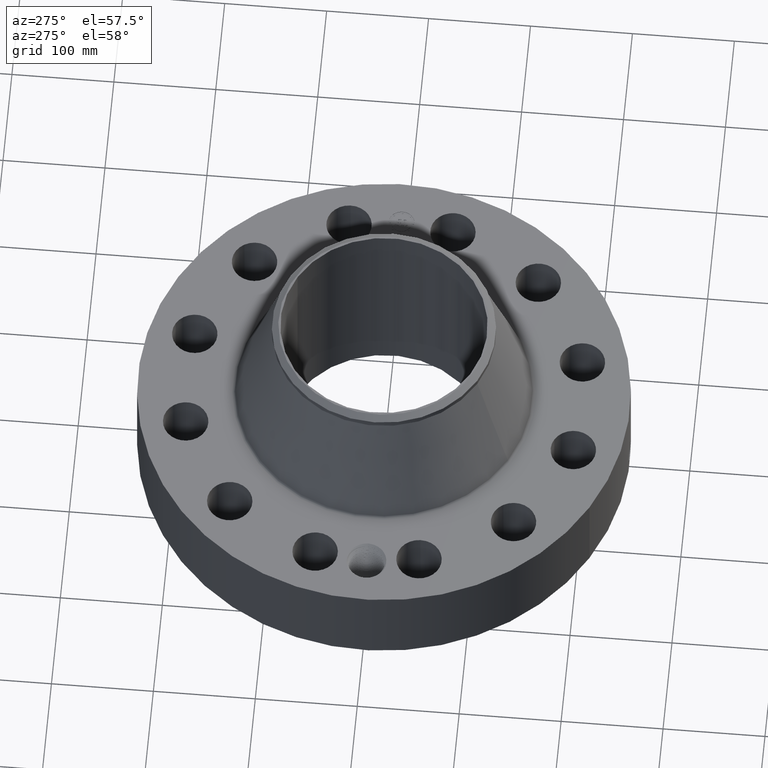
[diagram: clean part render]
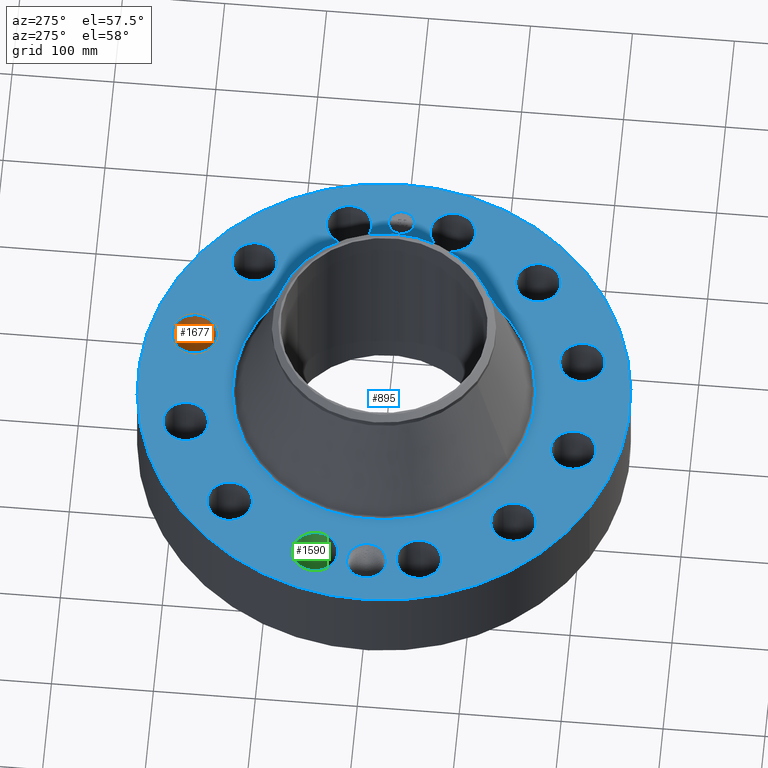
[diagram: same view with three faces highlighted in distinct colors, each labeled with its STEP entity id]
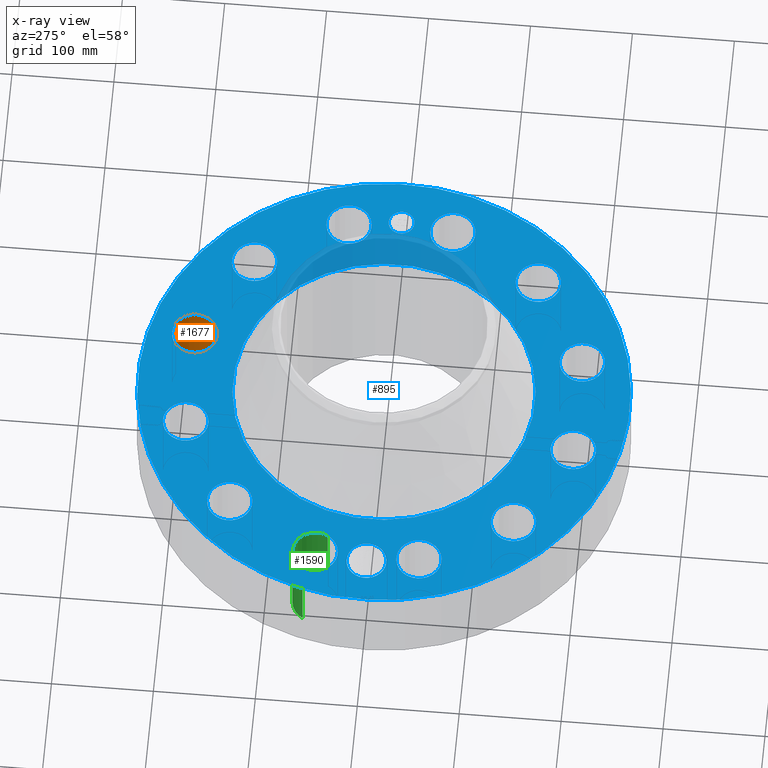
[diagram: x-ray of the same camera — body ghosted, the three highlighted faces saturated]
A machine part, auxiliary view with three faces highlighted in distinct colors.
The next image is the same camera in x-ray (body ghosted, the three faces saturated) — at least one of them is partly hidden behind the body in this view.
Their STEP definitions:

[orange] entity #1677 — the highlighted cylindrical surface (edge-blend (fillet) strip) has radius 22.225 mm, axis along (0, 0, -1).
#433=AXIS2_PLACEMENT_3D('Circle Axis2P3D',#431,#432,$) ;
#825=AXIS2_PLACEMENT_3D('Circle Axis2P3D',#823,#824,$) ;
#1652=AXIS2_PLACEMENT_3D('Cylinder Axis2P3D',#1649,#1650,#1651) ;
#426=CARTESIAN_POINT('Vertex',(1.58635025327,6.71804041211,0.250000000001)) ;
#428=CARTESIAN_POINT('Vertex',(2.42534494583,8.25380989543,0.250000000001)) ;
#431=CARTESIAN_POINT('Axis2P3D Location',(2.00584759955,7.48592515377,0.250000000001)) ;
#823=CARTESIAN_POINT('Axis2P3D Location',(2.00584759955,7.48592515377,3.87000000002)) ;
#827=CARTESIAN_POINT('Vertex',(2.42534494583,8.25380989543,3.87000000002)) ;
#829=CARTESIAN_POINT('Vertex',(1.58635025327,6.71804041211,3.87000000002)) ;
#1649=CARTESIAN_POINT('Axis2P3D Location',(2.00584759955,7.48592515377,3.86606299214)) ;
#1654=CARTESIAN_POINT('Line Origine',(1.58635025327,6.71804041211,2.06000000001)) ;
#1659=CARTESIAN_POINT('Line Origine',(2.42534494583,8.25380989543,2.06000000001)) ;
#432=DIRECTION('Axis2P3D Direction',(0.,0.,-0.0393700787402)) ;
#824=DIRECTION('Axis2P3D Direction',(0.,0.,-0.0393700787402)) ;
#1650=DIRECTION('Axis2P3D Direction',(0.,0.,-0.0393700787402)) ;
#1651=DIRECTION('Axis2P3D XDirection',(0.0188750212049,0.0345504945626,0.)) ;
#1655=DIRECTION('Vector Direction',(0.,0.,-0.0393700787402)) ;
#1660=DIRECTION('Vector Direction',(0.,0.,-0.0393700787402)) ;
#1656=VECTOR('Line Direction',#1655,0.0393700787402) ;
#1661=VECTOR('Line Direction',#1660,0.0393700787402) ;
#1672=ORIENTED_EDGE('',*,*,#1663,.F.) ;
#1673=ORIENTED_EDGE('',*,*,#435,.T.) ;
#1674=ORIENTED_EDGE('',*,*,#1658,.T.) ;
#1675=ORIENTED_EDGE('',*,*,#831,.F.) ;
#1677=ADVANCED_FACE('PartBody',(#1676),#1653,.F.) ;
#434=CIRCLE('generated circle',#433,0.875000000003) ;
#826=CIRCLE('generated circle',#825,0.875000000003) ;
#1653=CYLINDRICAL_SURFACE('generated cylinder',#1652,0.875000000003) ;
#435=EDGE_CURVE('',#429,#427,#434,.T.) ;
#831=EDGE_CURVE('',#828,#830,#826,.T.) ;
#1658=EDGE_CURVE('',#427,#830,#1657,.F.) ;
#1663=EDGE_CURVE('',#429,#828,#1662,.F.) ;
#1671=EDGE_LOOP('',(#1672,#1673,#1674,#1675)) ;
#1676=FACE_OUTER_BOUND('',#1671,.T.) ;
#1657=LINE('Line',#1654,#1656) ;
#1662=LINE('Line',#1659,#1661) ;
#427=VERTEX_POINT('',#426) ;
#429=VERTEX_POINT('',#428) ;
#828=VERTEX_POINT('',#827) ;
#830=VERTEX_POINT('',#829) ;

[blue] entity #895 — the highlighted planar face has unit normal (0, 0, -1).
#58=AXIS2_PLACEMENT_3D('Circle Axis2P3D',#56,#57,$) ;
#479=AXIS2_PLACEMENT_3D('Circle Axis2P3D',#477,#478,$) ;
#579=AXIS2_PLACEMENT_3D('Plane Axis2P3D',#576,#577,#578) ;
#627=AXIS2_PLACEMENT_3D('Circle Axis2P3D',#625,#626,$) ;
#634=AXIS2_PLACEMENT_3D('Circle Axis2P3D',#632,#633,$) ;
#645=AXIS2_PLACEMENT_3D('Circle Axis2P3D',#643,#644,$) ;
#654=AXIS2_PLACEMENT_3D('Circle Axis2P3D',#652,#653,$) ;
#663=AXIS2_PLACEMENT_3D('Circle Axis2P3D',#661,#662,$) ;
#672=AXIS2_PLACEMENT_3D('Circle Axis2P3D',#670,#671,$) ;
#681=AXIS2_PLACEMENT_3D('Circle Axis2P3D',#679,#680,$) ;
#690=AXIS2_PLACEMENT_3D('Circle Axis2P3D',#688,#689,$) ;
#699=AXIS2_PLACEMENT_3D('Circle Axis2P3D',#697,#698,$) ;
#708=AXIS2_PLACEMENT_3D('Circle Axis2P3D',#706,#707,$) ;
#717=AXIS2_PLACEMENT_3D('Circle Axis2P3D',#715,#716,$) ;
#726=AXIS2_PLACEMENT_3D('Circle Axis2P3D',#724,#725,$) ;
#735=AXIS2_PLACEMENT_3D('Circle Axis2P3D',#733,#734,$) ;
#744=AXIS2_PLACEMENT_3D('Circle Axis2P3D',#742,#743,$) ;
#753=AXIS2_PLACEMENT_3D('Circle Axis2P3D',#751,#752,$) ;
#762=AXIS2_PLACEMENT_3D('Circle Axis2P3D',#760,#761,$) ;
#771=AXIS2_PLACEMENT_3D('Circle Axis2P3D',#769,#770,$) ;
#780=AXIS2_PLACEMENT_3D('Circle Axis2P3D',#778,#779,$) ;
#789=AXIS2_PLACEMENT_3D('Circle Axis2P3D',#787,#788,$) ;
#798=AXIS2_PLACEMENT_3D('Circle Axis2P3D',#796,#797,$) ;
#807=AXIS2_PLACEMENT_3D('Circle Axis2P3D',#805,#806,$) ;
#816=AXIS2_PLACEMENT_3D('Circle Axis2P3D',#814,#815,$) ;
#825=AXIS2_PLACEMENT_3D('Circle Axis2P3D',#823,#824,$) ;
#834=AXIS2_PLACEMENT_3D('Circle Axis2P3D',#832,#833,$) ;
#843=AXIS2_PLACEMENT_3D('Circle Axis2P3D',#841,#842,$) ;
#852=AXIS2_PLACEMENT_3D('Circle Axis2P3D',#850,#851,$) ;
#861=AXIS2_PLACEMENT_3D('Circle Axis2P3D',#859,#860,$) ;
#870=AXIS2_PLACEMENT_3D('Circle Axis2P3D',#868,#869,$) ;
#879=AXIS2_PLACEMENT_3D('Circle Axis2P3D',#877,#878,$) ;
#888=AXIS2_PLACEMENT_3D('Circle Axis2P3D',#886,#887,$) ;
#53=CARTESIAN_POINT('Vertex',(-4.55454261676,-8.33703433799,3.87000000002)) ;
#56=CARTESIAN_POINT('Axis2P3D Location',(0.,0.,3.87000000002)) ;
#60=CARTESIAN_POINT('Vertex',(4.55454261676,8.33703433799,3.87000000002)) ;
#477=CARTESIAN_POINT('Axis2P3D Location',(0.,0.,3.87000000002)) ;
#576=CARTESIAN_POINT('Axis2P3D Location',(0.,9.50000000004,3.87000000002)) ;
#586=CARTESIAN_POINT('Control Point',(-6.93750000003,-1.1189649382E-015,3.87000000002)) ;
#587=CARTESIAN_POINT('Control Point',(-6.94050270174,0.0700643716533,3.87000000002)) ;
#588=CARTESIAN_POINT('Control Point',(-6.95106510881,0.139653918331,3.87000000002)) ;
#589=CARTESIAN_POINT('Control Point',(-6.96912217075,0.207669665805,3.87000000002)) ;
#590=CARTESIAN_POINT('Control Point',(-7.01959633248,0.338375341415,3.87000000002)) ;
#591=CARTESIAN_POINT('Control Point',(-7.09669362937,0.454596611107,3.87000000002)) ;
#592=CARTESIAN_POINT('Control Point',(-7.14137285231,0.508119592984,3.87000000002)) ;
#593=CARTESIAN_POINT('Control Point',(-7.22480597702,0.588234314488,3.87000000002)) ;
#594=CARTESIAN_POINT('Control Point',(-7.32073166902,0.651398150384,3.87000000002)) ;
#595=CARTESIAN_POINT('Control Point',(-7.36082466568,0.673749736171,3.87000000002)) ;
#596=CARTESIAN_POINT('Control Point',(-7.43341618429,0.707459395615,3.87000000002)) ;
#597=CARTESIAN_POINT('Control Point',(-7.50943712126,0.731460628839,3.87000000002)) ;
#598=CARTESIAN_POINT('Control Point',(-7.54246158519,0.739905640912,3.87000000002)) ;
#599=CARTESIAN_POINT('Control Point',(-7.57583923843,0.746494339011,3.87000000002)) ;
#600=CARTESIAN_POINT('Control Point',(-7.60943051844,0.751211210878,3.87000000002)) ;
#601=CARTESIAN_POINT('Vertex',(-6.93750000003,-1.1189649382E-015,3.87000000002)) ;
#603=CARTESIAN_POINT('Vertex',(-7.60943051844,0.751211210878,3.87000000002)) ;
#607=CARTESIAN_POINT('Control Point',(-6.93750000003,0.,3.87000000002)) ;
#608=CARTESIAN_POINT('Control Point',(-6.94050345407,-0.0700819270985,3.87000000002)) ;
#609=CARTESIAN_POINT('Control Point',(-6.9510703966,-0.13968879331,3.87000000002)) ;
#610=CARTESIAN_POINT('Control Point',(-6.9691262999,-0.2077000899,3.87000000002)) ;
#611=CARTESIAN_POINT('Control Point',(-7.01960475239,-0.338419180803,3.87000000002)) ;
#612=CARTESIAN_POINT('Control Point',(-7.09666289771,-0.454573260653,3.87000000002)) ;
#613=CARTESIAN_POINT('Control Point',(-7.14132770001,-0.50806985875,3.87000000002)) ;
#614=CARTESIAN_POINT('Control Point',(-7.24141814549,-0.604187154314,3.87000000002)) ;
#615=CARTESIAN_POINT('Control Point',(-7.35943673584,-0.675897168245,3.87000000002)) ;
#616=CARTESIAN_POINT('Control Point',(-7.4220592223,-0.705005522185,3.87000000002)) ;
#617=CARTESIAN_POINT('Control Point',(-7.49809723126,-0.730534576549,3.87000000002)) ;
#618=CARTESIAN_POINT('Control Point',(-7.57612386421,-0.745926235017,3.87000000002)) ;
#619=CARTESIAN_POINT('Control Point',(-7.58730466098,-0.747916893553,3.87000000002)) ;
#620=CARTESIAN_POINT('Control Point',(-7.59851584342,-0.749698817476,3.87000000002)) ;
#621=CARTESIAN_POINT('Control Point',(-7.60975225424,-0.751271343993,3.87000000002)) ;
#622=CARTESIAN_POINT('Vertex',(-7.60975225424,-0.751271343993,3.87000000002)) ;
#625=CARTESIAN_POINT('Axis2P3D Location',(-7.75000000003,-1.1189649382E-015,3.87000000002)) ;
#629=CARTESIAN_POINT('Vertex',(-8.42069247296,0.36640096788,3.87000000002)) ;
#632=CARTESIAN_POINT('Axis2P3D Location',(-7.75000000003,-1.1189649382E-015,3.87000000002)) ;
#643=CARTESIAN_POINT('Axis2P3D Location',(7.48592515377,-2.00584759955,3.87000000002)) ;
#647=CARTESIAN_POINT('Vertex',(6.71804041211,-1.58635025327,3.87000000002)) ;
#649=CARTESIAN_POINT('Vertex',(8.25380989543,-2.42534494583,3.87000000002)) ;
#652=CARTESIAN_POINT('Axis2P3D Location',(7.48592515377,-2.00584759955,3.87000000002)) ;
#661=CARTESIAN_POINT('Axis2P3D Location',(0.,0.,3.87000000002)) ;
#665=CARTESIAN_POINT('Vertex',(-2.79825437509,-5.12217027583,3.87000000002)) ;
#667=CARTESIAN_POINT('Vertex',(2.79825437509,5.12217027583,3.87000000002)) ;
#670=CARTESIAN_POINT('Axis2P3D Location',(0.,0.,3.87000000002)) ;
#679=CARTESIAN_POINT('Axis2P3D Location',(5.48007755422,-5.48007755422,3.87000000002)) ;
#683=CARTESIAN_POINT('Vertex',(5.93533657453,-6.22731528375,3.87000000002)) ;
#685=CARTESIAN_POINT('Vertex',(5.0248185339,-4.73283982469,3.87000000002)) ;
#688=CARTESIAN_POINT('Axis2P3D Location',(5.48007755422,-5.48007755422,3.87000000002)) ;
#697=CARTESIAN_POINT('Axis2P3D Location',(2.00584759955,-7.48592515377,3.87000000002)) ;
#701=CARTESIAN_POINT('Vertex',(2.02649461168,-8.36068152036,3.87000000002)) ;
#703=CARTESIAN_POINT('Vertex',(1.98520058742,-6.61116878718,3.87000000002)) ;
#706=CARTESIAN_POINT('Axis2P3D Location',(2.00584759955,-7.48592515377,3.87000000002)) ;
#715=CARTESIAN_POINT('Axis2P3D Location',(-2.00584759955,-7.48592515377,3.87000000002)) ;
#719=CARTESIAN_POINT('Vertex',(-2.42534494583,-8.25380989543,3.87000000002)) ;
#721=CARTESIAN_POINT('Vertex',(-1.58635025327,-6.71804041211,3.87000000002)) ;
#724=CARTESIAN_POINT('Axis2P3D Location',(-2.00584759955,-7.48592515377,3.87000000002)) ;
#733=CARTESIAN_POINT('Axis2P3D Location',(-5.48007755422,-5.48007755422,3.87000000002)) ;
#737=CARTESIAN_POINT('Vertex',(-6.22731528375,-5.93533657453,3.87000000002)) ;
#739=CARTESIAN_POINT('Vertex',(-4.73283982469,-5.0248185339,3.87000000002)) ;
#742=CARTESIAN_POINT('Axis2P3D Location',(-5.48007755422,-5.48007755422,3.87000000002)) ;
#751=CARTESIAN_POINT('Axis2P3D Location',(-7.48592515377,-2.00584759955,3.87000000002)) ;
#755=CARTESIAN_POINT('Vertex',(-8.36068152036,-2.02649461168,3.87000000002)) ;
#757=CARTESIAN_POINT('Vertex',(-6.61116878718,-1.98520058742,3.87000000002)) ;
#760=CARTESIAN_POINT('Axis2P3D Location',(-7.48592515377,-2.00584759955,3.87000000002)) ;
#769=CARTESIAN_POINT('Axis2P3D Location',(-7.48592515377,2.00584759955,3.87000000002)) ;
#773=CARTESIAN_POINT('Vertex',(-8.25380989543,2.42534494583,3.87000000002)) ;
#775=CARTESIAN_POINT('Vertex',(-6.71804041211,1.58635025327,3.87000000002)) ;
#778=CARTESIAN_POINT('Axis2P3D Location',(-7.48592515377,2.00584759955,3.87000000002)) ;
#787=CARTESIAN_POINT('Axis2P3D Location',(-5.48007755422,5.48007755422,3.87000000002)) ;
#791=CARTESIAN_POINT('Vertex',(-5.93533657453,6.22731528375,3.87000000002)) ;
#793=CARTESIAN_POINT('Vertex',(-5.0248185339,4.73283982469,3.87000000002)) ;
#796=CARTESIAN_POINT('Axis2P3D Location',(-5.48007755422,5.48007755422,3.87000000002)) ;
#805=CARTESIAN_POINT('Axis2P3D Location',(-2.00584759955,7.48592515377,3.87000000002)) ;
#809=CARTESIAN_POINT('Vertex',(-2.02649461168,8.36068152036,3.87000000002)) ;
#811=CARTESIAN_POINT('Vertex',(-1.98520058742,6.61116878718,3.87000000002)) ;
#814=CARTESIAN_POINT('Axis2P3D Location',(-2.00584759955,7.48592515377,3.87000000002)) ;
#823=CARTESIAN_POINT('Axis2P3D Location',(2.00584759955,7.48592515377,3.87000000002)) ;
#827=CARTESIAN_POINT('Vertex',(2.42534494583,8.25380989543,3.87000000002)) ;
#829=CARTESIAN_POINT('Vertex',(1.58635025327,6.71804041211,3.87000000002)) ;
#832=CARTESIAN_POINT('Axis2P3D Location',(2.00584759955,7.48592515377,3.87000000002)) ;
#841=CARTESIAN_POINT('Axis2P3D Location',(5.48007755422,5.48007755422,3.87000000002)) ;
#845=CARTESIAN_POINT('Vertex',(6.22731528375,5.93533657453,3.87000000002)) ;
#847=CARTESIAN_POINT('Vertex',(4.73283982469,5.0248185339,3.87000000002)) ;
#850=CARTESIAN_POINT('Axis2P3D Location',(5.48007755422,5.48007755422,3.87000000002)) ;
#859=CARTESIAN_POINT('Axis2P3D Location',(7.48592515377,2.00584759955,3.87000000002)) ;
#863=CARTESIAN_POINT('Vertex',(8.36068152036,2.02649461168,3.87000000002)) ;
#865=CARTESIAN_POINT('Vertex',(6.61116878718,1.98520058742,3.87000000002)) ;
#868=CARTESIAN_POINT('Axis2P3D Location',(7.48592515377,2.00584759955,3.87000000002)) ;
#877=CARTESIAN_POINT('Axis2P3D Location',(7.75000000003,-3.13310182697E-014,3.87000000002)) ;
#881=CARTESIAN_POINT('Vertex',(7.75000000003,0.499999995002,3.87000000002)) ;
#883=CARTESIAN_POINT('Vertex',(7.75000000003,-0.499999995002,3.87000000002)) ;
#886=CARTESIAN_POINT('Axis2P3D Location',(7.75000000003,-3.02120533315E-014,3.87000000002)) ;
#57=DIRECTION('Axis2P3D Direction',(0.,0.,-0.0393700787402)) ;
#478=DIRECTION('Axis2P3D Direction',(0.,0.,-0.0393700787402)) ;
#577=DIRECTION('Axis2P3D Direction',(0.,0.,-0.0393700787402)) ;
#578=DIRECTION('Axis2P3D XDirection',(0.0393700787402,0.,0.)) ;
#626=DIRECTION('Axis2P3D Direction',(0.,0.,-0.0393700787402)) ;
#633=DIRECTION('Axis2P3D Direction',(0.,0.,-0.0393700787402)) ;
#644=DIRECTION('Axis2P3D Direction',(0.,0.,-0.0393700787402)) ;
#653=DIRECTION('Axis2P3D Direction',(0.,0.,-0.0393700787402)) ;
#662=DIRECTION('Axis2P3D Direction',(0.,0.,-0.0393700787402)) ;
#671=DIRECTION('Axis2P3D Direction',(0.,0.,-0.0393700787402)) ;
#680=DIRECTION('Axis2P3D Direction',(0.,0.,-0.0393700787402)) ;
#689=DIRECTION('Axis2P3D Direction',(0.,0.,-0.0393700787402)) ;
#698=DIRECTION('Axis2P3D Direction',(0.,0.,-0.0393700787402)) ;
#707=DIRECTION('Axis2P3D Direction',(0.,0.,-0.0393700787402)) ;
#716=DIRECTION('Axis2P3D Direction',(0.,0.,-0.0393700787402)) ;
#725=DIRECTION('Axis2P3D Direction',(0.,0.,-0.0393700787402)) ;
#734=DIRECTION('Axis2P3D Direction',(0.,0.,-0.0393700787402)) ;
#743=DIRECTION('Axis2P3D Direction',(0.,0.,-0.0393700787402)) ;
#752=DIRECTION('Axis2P3D Direction',(0.,0.,-0.0393700787402)) ;
#761=DIRECTION('Axis2P3D Direction',(0.,0.,-0.0393700787402)) ;
#770=DIRECTION('Axis2P3D Direction',(0.,0.,-0.0393700787402)) ;
#779=DIRECTION('Axis2P3D Direction',(0.,0.,-0.0393700787402)) ;
#788=DIRECTION('Axis2P3D Direction',(0.,0.,-0.0393700787402)) ;
#797=DIRECTION('Axis2P3D Direction',(0.,0.,-0.0393700787402)) ;
#806=DIRECTION('Axis2P3D Direction',(0.,0.,-0.0393700787402)) ;
#815=DIRECTION('Axis2P3D Direction',(0.,0.,-0.0393700787402)) ;
#824=DIRECTION('Axis2P3D Direction',(0.,0.,-0.0393700787402)) ;
#833=DIRECTION('Axis2P3D Direction',(0.,0.,-0.0393700787402)) ;
#842=DIRECTION('Axis2P3D Direction',(0.,0.,-0.0393700787402)) ;
#851=DIRECTION('Axis2P3D Direction',(0.,0.,-0.0393700787402)) ;
#860=DIRECTION('Axis2P3D Direction',(0.,0.,-0.0393700787402)) ;
#869=DIRECTION('Axis2P3D Direction',(0.,0.,-0.0393700787402)) ;
#878=DIRECTION('Axis2P3D Direction',(0.,0.,-0.0393700787402)) ;
#887=DIRECTION('Axis2P3D Direction',(0.,0.,-0.0393700787402)) ;
#582=ORIENTED_EDGE('',*,*,#481,.F.) ;
#583=ORIENTED_EDGE('',*,*,#62,.F.) ;
#638=ORIENTED_EDGE('',*,*,#605,.F.) ;
#639=ORIENTED_EDGE('',*,*,#624,.T.) ;
#640=ORIENTED_EDGE('',*,*,#631,.T.) ;
#641=ORIENTED_EDGE('',*,*,#636,.T.) ;
#658=ORIENTED_EDGE('',*,*,#651,.T.) ;
#659=ORIENTED_EDGE('',*,*,#656,.T.) ;
#676=ORIENTED_EDGE('',*,*,#669,.T.) ;
#677=ORIENTED_EDGE('',*,*,#674,.T.) ;
#694=ORIENTED_EDGE('',*,*,#687,.T.) ;
#695=ORIENTED_EDGE('',*,*,#692,.T.) ;
#712=ORIENTED_EDGE('',*,*,#705,.T.) ;
#713=ORIENTED_EDGE('',*,*,#710,.T.) ;
#730=ORIENTED_EDGE('',*,*,#723,.T.) ;
#731=ORIENTED_EDGE('',*,*,#728,.T.) ;
#748=ORIENTED_EDGE('',*,*,#741,.T.) ;
#749=ORIENTED_EDGE('',*,*,#746,.T.) ;
#766=ORIENTED_EDGE('',*,*,#759,.T.) ;
#767=ORIENTED_EDGE('',*,*,#764,.T.) ;
#784=ORIENTED_EDGE('',*,*,#777,.T.) ;
#785=ORIENTED_EDGE('',*,*,#782,.T.) ;
#802=ORIENTED_EDGE('',*,*,#795,.T.) ;
#803=ORIENTED_EDGE('',*,*,#800,.T.) ;
#820=ORIENTED_EDGE('',*,*,#813,.T.) ;
#821=ORIENTED_EDGE('',*,*,#818,.T.) ;
#838=ORIENTED_EDGE('',*,*,#831,.T.) ;
#839=ORIENTED_EDGE('',*,*,#836,.T.) ;
#856=ORIENTED_EDGE('',*,*,#849,.T.) ;
#857=ORIENTED_EDGE('',*,*,#854,.T.) ;
#874=ORIENTED_EDGE('',*,*,#867,.T.) ;
#875=ORIENTED_EDGE('',*,*,#872,.T.) ;
#892=ORIENTED_EDGE('',*,*,#885,.T.) ;
#893=ORIENTED_EDGE('',*,*,#890,.T.) ;
#642=FACE_BOUND('',#637,.T.) ;
#660=FACE_BOUND('',#657,.T.) ;
#678=FACE_BOUND('',#675,.T.) ;
#696=FACE_BOUND('',#693,.T.) ;
#714=FACE_BOUND('',#711,.T.) ;
#732=FACE_BOUND('',#729,.T.) ;
#750=FACE_BOUND('',#747,.T.) ;
#768=FACE_BOUND('',#765,.T.) ;
#786=FACE_BOUND('',#783,.T.) ;
#804=FACE_BOUND('',#801,.T.) ;
#822=FACE_BOUND('',#819,.T.) ;
#840=FACE_BOUND('',#837,.T.) ;
#858=FACE_BOUND('',#855,.T.) ;
#876=FACE_BOUND('',#873,.T.) ;
#894=FACE_BOUND('',#891,.T.) ;
#895=ADVANCED_FACE('PartBody',(#584,#642,#660,#678,#696,#714,#732,#750,#768,#786,#804,#822,#840,#858,#876,#894),#580,.F.) ;
#585=B_SPLINE_CURVE_WITH_KNOTS('',5,(#586,#587,#588,#589,#590,#591,#592,#593,#594,#595,#596,#597,#598,#599,#600),.UNSPECIFIED.,.F.,.U.,(6,3,3,3,6),(0.,12.1950214662,24.3883268567,32.513321152,38.5899002968),.UNSPECIFIED.) ;
#606=B_SPLINE_CURVE_WITH_KNOTS('',5,(#607,#608,#609,#610,#611,#612,#613,#614,#615,#616,#617,#618,#619,#620,#621),.UNSPECIFIED.,.F.,.U.,(6,3,3,3,6),(0.,12.198077071,24.40628274,36.6208509285,38.6563202469),.UNSPECIFIED.) ;
#59=CIRCLE('generated circle',#58,9.50000000004) ;
#480=CIRCLE('generated circle',#479,9.50000000004) ;
#628=CIRCLE('generated circle',#627,0.764250000003) ;
#635=CIRCLE('generated circle',#634,0.764250000003) ;
#646=CIRCLE('generated circle',#645,0.875000000003) ;
#655=CIRCLE('generated circle',#654,0.875000000003) ;
#664=CIRCLE('generated circle',#663,5.83668192403) ;
#673=CIRCLE('generated circle',#672,5.83668192403) ;
#682=CIRCLE('generated circle',#681,0.875000000003) ;
#691=CIRCLE('generated circle',#690,0.875000000003) ;
#700=CIRCLE('generated circle',#699,0.875000000003) ;
#709=CIRCLE('generated circle',#708,0.875000000003) ;
#718=CIRCLE('generated circle',#717,0.875000000003) ;
#727=CIRCLE('generated circle',#726,0.875000000003) ;
#736=CIRCLE('generated circle',#735,0.875000000004) ;
#745=CIRCLE('generated circle',#744,0.875000000004) ;
#754=CIRCLE('generated circle',#753,0.875000000003) ;
#763=CIRCLE('generated circle',#762,0.875000000003) ;
#772=CIRCLE('generated circle',#771,0.875000000003) ;
#781=CIRCLE('generated circle',#780,0.875000000003) ;
#790=CIRCLE('generated circle',#789,0.875000000003) ;
#799=CIRCLE('generated circle',#798,0.875000000003) ;
#808=CIRCLE('generated circle',#807,0.875000000003) ;
#817=CIRCLE('generated circle',#816,0.875000000003) ;
#826=CIRCLE('generated circle',#825,0.875000000003) ;
#835=CIRCLE('generated circle',#834,0.875000000003) ;
#844=CIRCLE('generated circle',#843,0.875000000003) ;
#853=CIRCLE('generated circle',#852,0.875000000003) ;
#862=CIRCLE('generated circle',#861,0.875000000003) ;
#871=CIRCLE('generated circle',#870,0.875000000003) ;
#880=CIRCLE('generated circle',#879,0.499999995002) ;
#889=CIRCLE('generated circle',#888,0.499999995002) ;
#62=EDGE_CURVE('',#54,#61,#59,.T.) ;
#481=EDGE_CURVE('',#61,#54,#480,.T.) ;
#605=EDGE_CURVE('',#602,#604,#585,.T.) ;
#624=EDGE_CURVE('',#602,#623,#606,.T.) ;
#631=EDGE_CURVE('',#623,#630,#628,.T.) ;
#636=EDGE_CURVE('',#630,#604,#635,.T.) ;
#651=EDGE_CURVE('',#648,#650,#646,.T.) ;
#656=EDGE_CURVE('',#650,#648,#655,.T.) ;
#669=EDGE_CURVE('',#666,#668,#664,.T.) ;
#674=EDGE_CURVE('',#668,#666,#673,.T.) ;
#687=EDGE_CURVE('',#684,#686,#682,.T.) ;
#692=EDGE_CURVE('',#686,#684,#691,.T.) ;
#705=EDGE_CURVE('',#702,#704,#700,.T.) ;
#710=EDGE_CURVE('',#704,#702,#709,.T.) ;
#723=EDGE_CURVE('',#720,#722,#718,.T.) ;
#728=EDGE_CURVE('',#722,#720,#727,.T.) ;
#741=EDGE_CURVE('',#738,#740,#736,.T.) ;
#746=EDGE_CURVE('',#740,#738,#745,.T.) ;
#759=EDGE_CURVE('',#756,#758,#754,.T.) ;
#764=EDGE_CURVE('',#758,#756,#763,.T.) ;
#777=EDGE_CURVE('',#774,#776,#772,.T.) ;
#782=EDGE_CURVE('',#776,#774,#781,.T.) ;
#795=EDGE_CURVE('',#792,#794,#790,.T.) ;
#800=EDGE_CURVE('',#794,#792,#799,.T.) ;
#813=EDGE_CURVE('',#810,#812,#808,.T.) ;
#818=EDGE_CURVE('',#812,#810,#817,.T.) ;
#831=EDGE_CURVE('',#828,#830,#826,.T.) ;
#836=EDGE_CURVE('',#830,#828,#835,.T.) ;
#849=EDGE_CURVE('',#846,#848,#844,.T.) ;
#854=EDGE_CURVE('',#848,#846,#853,.T.) ;
#867=EDGE_CURVE('',#864,#866,#862,.T.) ;
#872=EDGE_CURVE('',#866,#864,#871,.T.) ;
#885=EDGE_CURVE('',#882,#884,#880,.T.) ;
#890=EDGE_CURVE('',#884,#882,#889,.T.) ;
#581=EDGE_LOOP('',(#582,#583)) ;
#637=EDGE_LOOP('',(#638,#639,#640,#641)) ;
#657=EDGE_LOOP('',(#658,#659)) ;
#675=EDGE_LOOP('',(#676,#677)) ;
#693=EDGE_LOOP('',(#694,#695)) ;
#711=EDGE_LOOP('',(#712,#713)) ;
#729=EDGE_LOOP('',(#730,#731)) ;
#747=EDGE_LOOP('',(#748,#749)) ;
#765=EDGE_LOOP('',(#766,#767)) ;
#783=EDGE_LOOP('',(#784,#785)) ;
#801=EDGE_LOOP('',(#802,#803)) ;
#819=EDGE_LOOP('',(#820,#821)) ;
#837=EDGE_LOOP('',(#838,#839)) ;
#855=EDGE_LOOP('',(#856,#857)) ;
#873=EDGE_LOOP('',(#874,#875)) ;
#891=EDGE_LOOP('',(#892,#893)) ;
#584=FACE_OUTER_BOUND('',#581,.T.) ;
#580=PLANE('',#579) ;
#54=VERTEX_POINT('',#53) ;
#61=VERTEX_POINT('',#60) ;
#602=VERTEX_POINT('',#601) ;
#604=VERTEX_POINT('',#603) ;
#623=VERTEX_POINT('',#622) ;
#630=VERTEX_POINT('',#629) ;
#648=VERTEX_POINT('',#647) ;
#650=VERTEX_POINT('',#649) ;
#666=VERTEX_POINT('',#665) ;
#668=VERTEX_POINT('',#667) ;
#684=VERTEX_POINT('',#683) ;
#686=VERTEX_POINT('',#685) ;
#702=VERTEX_POINT('',#701) ;
#704=VERTEX_POINT('',#703) ;
#720=VERTEX_POINT('',#719) ;
#722=VERTEX_POINT('',#721) ;
#738=VERTEX_POINT('',#737) ;
#740=VERTEX_POINT('',#739) ;
#756=VERTEX_POINT('',#755) ;
#758=VERTEX_POINT('',#757) ;
#774=VERTEX_POINT('',#773) ;
#776=VERTEX_POINT('',#775) ;
#792=VERTEX_POINT('',#791) ;
#794=VERTEX_POINT('',#793) ;
#810=VERTEX_POINT('',#809) ;
#812=VERTEX_POINT('',#811) ;
#828=VERTEX_POINT('',#827) ;
#830=VERTEX_POINT('',#829) ;
#846=VERTEX_POINT('',#845) ;
#848=VERTEX_POINT('',#847) ;
#864=VERTEX_POINT('',#863) ;
#866=VERTEX_POINT('',#865) ;
#882=VERTEX_POINT('',#881) ;
#884=VERTEX_POINT('',#883) ;

[green] entity #1590 — the highlighted cylindrical surface (edge-blend (fillet) strip) has radius 22.225 mm, axis along (-0, 0, -1).
#379=AXIS2_PLACEMENT_3D('Circle Axis2P3D',#377,#378,$) ;
#771=AXIS2_PLACEMENT_3D('Circle Axis2P3D',#769,#770,$) ;
#1565=AXIS2_PLACEMENT_3D('Cylinder Axis2P3D',#1562,#1563,#1564) ;
#372=CARTESIAN_POINT('Vertex',(-6.71804041211,1.58635025327,0.250000000001)) ;
#374=CARTESIAN_POINT('Vertex',(-8.25380989543,2.42534494583,0.250000000001)) ;
#377=CARTESIAN_POINT('Axis2P3D Location',(-7.48592515377,2.00584759955,0.250000000001)) ;
#769=CARTESIAN_POINT('Axis2P3D Location',(-7.48592515377,2.00584759955,3.87000000002)) ;
#773=CARTESIAN_POINT('Vertex',(-8.25380989543,2.42534494583,3.87000000002)) ;
#775=CARTESIAN_POINT('Vertex',(-6.71804041211,1.58635025327,3.87000000002)) ;
#1562=CARTESIAN_POINT('Axis2P3D Location',(-7.48592515377,2.00584759955,3.86606299214)) ;
#1567=CARTESIAN_POINT('Line Origine',(-6.71804041211,1.58635025327,2.06000000001)) ;
#1572=CARTESIAN_POINT('Line Origine',(-8.25380989543,2.42534494583,2.06000000001)) ;
#378=DIRECTION('Axis2P3D Direction',(0.,0.,-0.0393700787402)) ;
#770=DIRECTION('Axis2P3D Direction',(0.,0.,-0.0393700787402)) ;
#1563=DIRECTION('Axis2P3D Direction',(-0.,0.,-0.0393700787402)) ;
#1564=DIRECTION('Axis2P3D XDirection',(-0.0345504945626,0.0188750212049,0.)) ;
#1568=DIRECTION('Vector Direction',(0.,0.,-0.0393700787402)) ;
#1573=DIRECTION('Vector Direction',(0.,0.,-0.0393700787402)) ;
#1569=VECTOR('Line Direction',#1568,0.0393700787402) ;
#1574=VECTOR('Line Direction',#1573,0.0393700787402) ;
#1585=ORIENTED_EDGE('',*,*,#1576,.F.) ;
#1586=ORIENTED_EDGE('',*,*,#381,.T.) ;
#1587=ORIENTED_EDGE('',*,*,#1571,.T.) ;
#1588=ORIENTED_EDGE('',*,*,#777,.F.) ;
#1590=ADVANCED_FACE('PartBody',(#1589),#1566,.F.) ;
#380=CIRCLE('generated circle',#379,0.875000000003) ;
#772=CIRCLE('generated circle',#771,0.875000000003) ;
#1566=CYLINDRICAL_SURFACE('generated cylinder',#1565,0.875000000003) ;
#381=EDGE_CURVE('',#375,#373,#380,.T.) ;
#777=EDGE_CURVE('',#774,#776,#772,.T.) ;
#1571=EDGE_CURVE('',#373,#776,#1570,.F.) ;
#1576=EDGE_CURVE('',#375,#774,#1575,.F.) ;
#1584=EDGE_LOOP('',(#1585,#1586,#1587,#1588)) ;
#1589=FACE_OUTER_BOUND('',#1584,.T.) ;
#1570=LINE('Line',#1567,#1569) ;
#1575=LINE('Line',#1572,#1574) ;
#373=VERTEX_POINT('',#372) ;
#375=VERTEX_POINT('',#374) ;
#774=VERTEX_POINT('',#773) ;
#776=VERTEX_POINT('',#775) ;